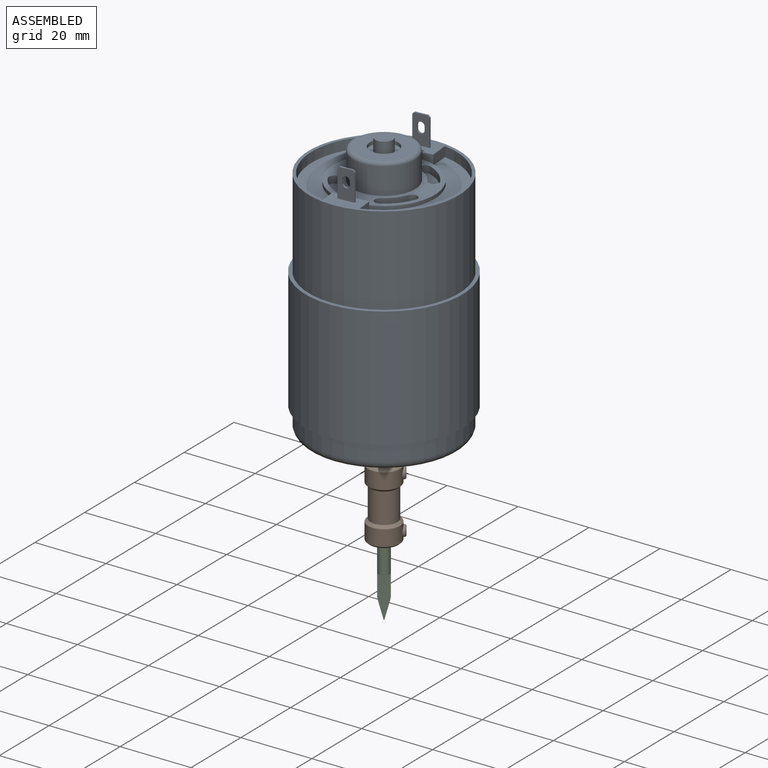
[diagram: assembled view]
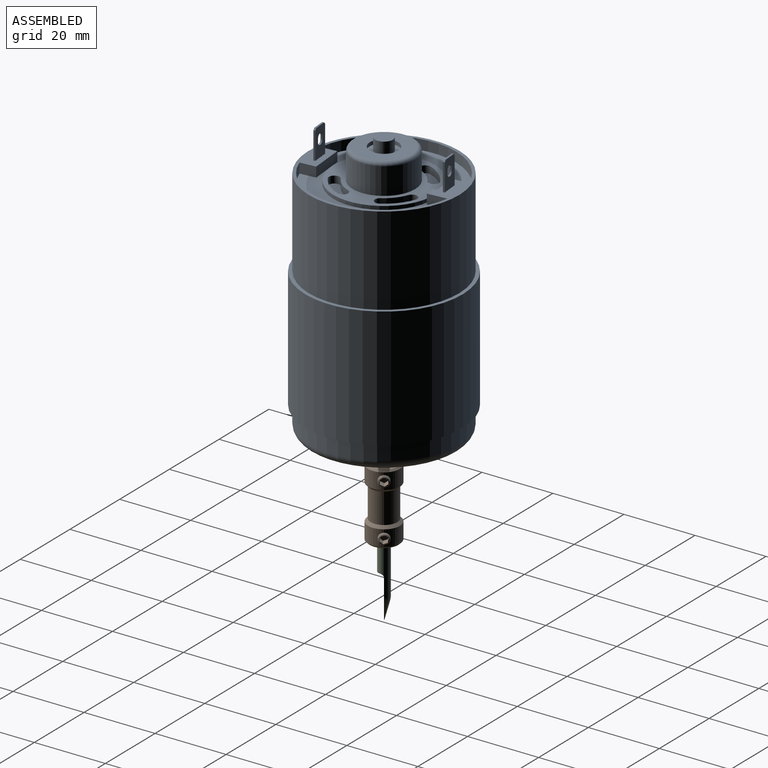
[diagram: assembled view, second angle]
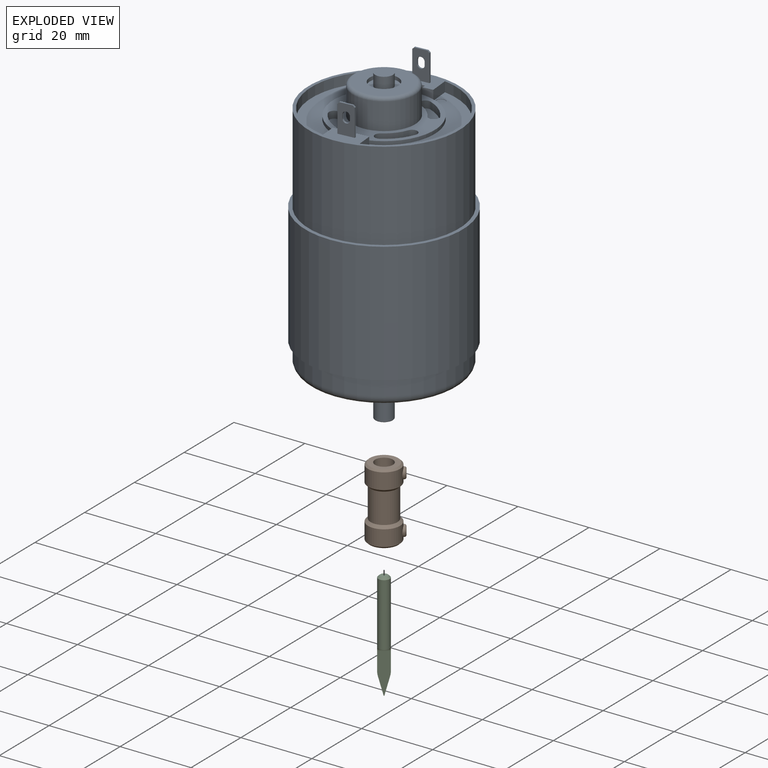
[diagram: exploded view]
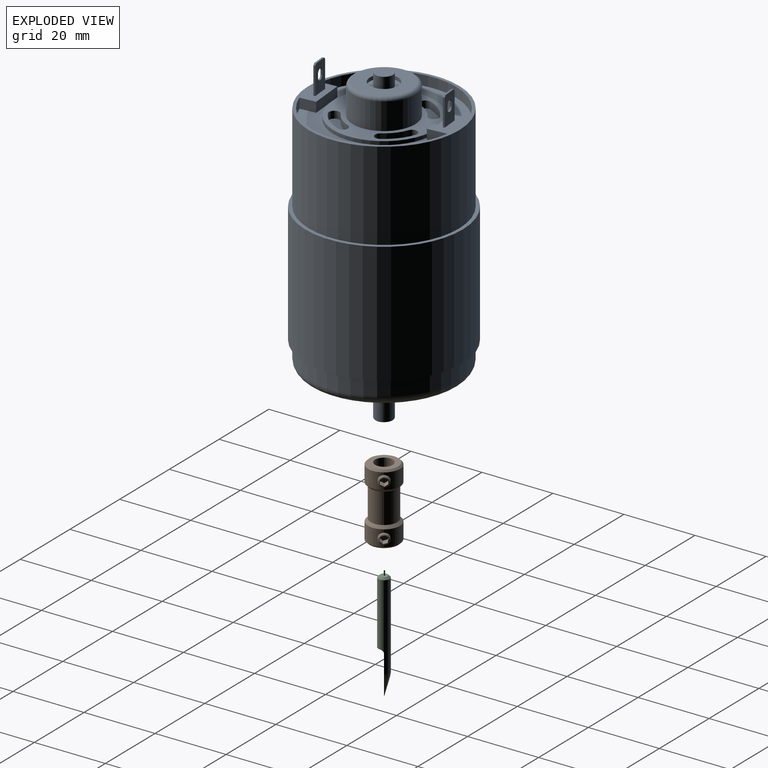
[diagram: exploded view, second angle]
ASSEMBLY  parts=3 mates=2
PART A: 110 faces, bbox 45.6x88x45.6 mm
  f0: torus R=18.65mm, axis (0,1,0), area 249.7mm2, adj f6,f28,f41
  f1: torus R=8.15mm, axis (0,1,0), area 31.9mm2, adj f8,f79,f85
  f2: torus R=7.75mm, axis (0,-1,0), area 41.4mm2, adj f19,f102,f104
  f3: torus R=2.25mm, axis (0,1,0), area 3mm2, adj f23,f107,f109
  f4: cylinder r=22.15mm len=44.3mm, axis (0,1,0), area 4731.9mm2, adj f25,f26
  f5: cylinder r=21.15mm len=42.3mm, axis (0,-1,0), area 3322.2mm2, adj f25,f27
  f6: cylinder r=21.15mm len=42.3mm, axis (0,-1,0), area 611.3mm2, adj f0,f26,f28
  f7: cylinder r=20.3mm len=39.26mm, axis (0,1,0), area 151mm2, adj f27,f31,f38,f51
  f8: cylinder r=8.9mm len=17.8mm, axis (0,-1,0), area 237.7mm2, adj f1,f41,f79
  f9: cylinder r=1.65mm len=11.5mm, axis (0,-1,0), area 119.2mm2, adj f13,f41
  f10: cylinder r=1.65mm len=11.5mm, axis (0,-1,0), area 119.2mm2, adj f14,f41
  f11: cylinder r=14.25mm len=28.5mm, axis (0,1,0), area 89.5mm2, adj f51,f83
  f12: cylinder r=1.25mm len=2.5mm, axis (0,1,0), area 0.8mm2, adj f51,f84
  f13: cone r=1.65mm half-angle=59deg, axis (0,-1,0), area 10mm2, adj f9
  f14: cone r=1.65mm half-angle=59deg, axis (0,-1,0), area 10mm2, adj f10
  f15: cylinder r=1.5mm len=2.9mm, axis (0,1,0), area 9.4mm2, adj f83,f86,f87,f98
  f16: cylinder r=1.5mm len=2.9mm, axis (0,1,0), area 9.4mm2, adj f83,f89,f90,f99
  f17: cylinder r=1.5mm len=2.79mm, axis (0,1,0), area 9.4mm2, adj f83,f92,f94,f100
  f18: cylinder r=1.5mm len=2.79mm, axis (0,1,0), area 9.4mm2, adj f83,f95,f97,f101
  f19: cylinder r=8.75mm len=17.5mm, axis (0,-1,0), area 412.3mm2, adj f2,f83,f102
  f20: cylinder r=6.62mm len=13.25mm, axis (0,-1,0), area 41.6mm2, adj f85,f103
  f21: cylinder r=3.75mm len=7.5mm, axis (0,-1,0), area 23.6mm2, adj f103,f105
  f22: cylinder r=4mm len=8mm, axis (0,1,0), area 25.1mm2, adj f104,f106
  f23: cylinder r=2.5mm len=7.55mm, axis (0,-1,0), area 118.6mm2, adj f3,f105,f107
  f24: cylinder r=2.5mm len=5mm, axis (0,-1,0), area 53.4mm2, adj f106,f108
  f25: plane 44.3x44.3mm, normal (0,1,0), area 136mm2, adj f4,f5
  f26: plane 44.3x44.3mm, normal (0,-1,0), area 136mm2, adj f4,f6
  f27: plane 42.3x42.3mm, normal (0,1,0), area 203.5mm2, adj f5,f7,f29,f30,f31,f32,f33,f34
  f28: torus R=18.65mm, axis (0,1,0), area 249.7mm2, adj f0,f6,f41
  f29: plane 8.15x4.58mm, normal (0.09,0,1), area 32.1mm2, adj f27,f42,f43,f44,f45,f46,f47,f48
  f30: plane 8.15x4.58mm, normal (-0.09,0,-1), area 32.1mm2, adj f27,f42,f43,f44,f45,f46,f47,f48
  f31: plane 4.44x2.8mm, normal (1,0,-0.09), area 12.5mm2, adj f7,f27,f32,f51
  f32: plane 9.71x2.8mm, normal (-0.09,0,-1), area 27.3mm2, adj f27,f31,f33,f51
  f33: plane 4.44x2.8mm, normal (-1,0,0.09), area 12.5mm2, adj f27,f32,f34,f51
  f34: cylinder r=20.3mm len=39.26mm, axis (0,1,0), area 151mm2, adj f27,f33,f35,f51
  f35: plane 4.44x2.8mm, normal (-1,0,0.09), area 12.5mm2, adj f27,f34,f36,f51
  f36: plane 6.92x2.8mm, normal (0.09,0,1), area 19.4mm2, adj f27,f35,f51,f52
  f37: plane 2.8x2.8mm, normal (0.09,0,1), area 7.9mm2, adj f27,f38,f51,f52
  f38: plane 5.44x2.8mm, normal (1,0,-0.09), area 15.3mm2, adj f7,f27,f37,f51
  f39: plane 8.15x4.58mm, normal (-0.09,0,-1), area 32.1mm2, adj f27,f53,f54,f55,f56,f57,f58,f59
  f40: plane 8.15x4.58mm, normal (0.09,0,1), area 32.1mm2, adj f27,f53,f54,f55,f56,f57,f58,f59
  f41: plane 37.3x37.3mm, normal (0,-1,0), area 647.6mm2, adj f0,f8,f9,f10,f28,f62,f63,f64
  f42: plane 3.63x0.81mm, normal (0,1,0), area 1.8mm2, adj f29,f30,f43,f46
  f43: plane 0.54x0.54mm, normal (-0.7,0.71,0.06), area 0.4mm2, adj f29,f30,f42,f44
  f44: plane 7.65x0.5mm, normal (-1,0,0.09), area 3.8mm2, adj f27,f29,f30,f43
  f45: plane 7.65x0.5mm, normal (1,0,-0.09), area 3.8mm2, adj f27,f29,f30,f46
  f46: plane 0.54x0.54mm, normal (0.7,0.71,-0.06), area 0.4mm2, adj f29,f30,f42,f45
  f47: plane 1x0.5mm, normal (1,0,-0.09), area 0.5mm2, adj f29,f30,f48,f50
  f48: cylinder r=1mm len=2.04mm, axis (0.09,0,1), area 1.6mm2, adj f29,f30,f47,f49
  f49: plane 1x0.5mm, normal (-1,0,0.09), area 0.5mm2, adj f29,f30,f48,f50
  f50: cylinder r=1mm len=2.04mm, axis (0.09,0,1), area 1.6mm2, adj f29,f30,f47,f49
  f51: plane 40.6x40.11mm, normal (0,1,0), area 554.3mm2, adj f7,f11,f12,f31,f32,f33,f34,f35
  f52: plane 2.8x1mm, normal (-1,0,0.09), area 2.8mm2, adj f27,f36,f37,f51
  f53: plane 7.65x0.5mm, normal (-1,0,0.09), area 3.8mm2, adj f27,f39,f40,f54
  f54: plane 0.54x0.54mm, normal (-0.7,0.71,0.06), area 0.4mm2, adj f39,f40,f53,f55
  f55: plane 3.63x0.81mm, normal (0,1,0), area 1.8mm2, adj f39,f40,f54,f56
  f56: plane 0.54x0.54mm, normal (0.7,0.71,-0.06), area 0.4mm2, adj f39,f40,f55,f57
  f57: plane 7.65x0.5mm, normal (1,0,-0.09), area 3.8mm2, adj f27,f39,f40,f56
  f58: plane 1x0.5mm, normal (-1,0,0.09), area 0.5mm2, adj f39,f40,f59,f61
  f59: cylinder r=1mm len=2.04mm, axis (-0.09,0,-1), area 1.6mm2, adj f39,f40,f58,f60
  f60: plane 1x0.5mm, normal (1,0,-0.09), area 0.5mm2, adj f39,f40,f59,f61
  f61: cylinder r=1mm len=2.04mm, axis (-0.09,0,-1), area 1.6mm2, adj f39,f40,f58,f60
  f62: plane 10x4.42mm, normal (-0.94,0,-0.34), area 47mm2, adj f41,f63,f65,f78
  f63: cylinder r=11.3mm len=10mm, axis (0,-1,0), area 78.9mm2, adj f41,f62,f64,f78
  f64: plane 10x4.07mm, normal (0.5,0,0.87), area 47mm2, adj f41,f63,f65,f78
  f65: cylinder r=16mm len=10mm, axis (0,-1,0), area 111.7mm2, adj f41,f62,f64,f78
  f66: cylinder r=16mm len=10mm, axis (0,-1,0), area 111.7mm2, adj f41,f67,f69,f80
  f67: plane 10x4.42mm, normal (0.94,0,0.34), area 47mm2, adj f41,f66,f68,f80
  f68: cylinder r=11.3mm len=10mm, axis (0,-1,0), area 78.9mm2, adj f41,f67,f69,f80
  f69: plane 10x4.07mm, normal (-0.5,0,-0.87), area 47mm2, adj f41,f66,f68,f80
  f70: plane 10x4.42mm, normal (-0.34,0,0.94), area 47mm2, adj f41,f71,f73,f81
  f71: cylinder r=11.3mm len=10mm, axis (0,-1,0), area 78.9mm2, adj f41,f70,f72,f81
  f72: plane 10x4.07mm, normal (0.87,0,-0.5), area 47mm2, adj f41,f71,f73,f81
  f73: cylinder r=16mm len=10mm, axis (0,-1,0), area 111.7mm2, adj f41,f70,f72,f81
  f74: cylinder r=16mm len=10mm, axis (0,-1,0), area 111.7mm2, adj f41,f75,f77,f82
  f75: plane 10x4.42mm, normal (0.34,0,-0.94), area 47mm2, adj f41,f74,f76,f82
  f76: cylinder r=11.3mm len=10mm, axis (0,-1,0), area 78.9mm2, adj f41,f75,f77,f82
  f77: plane 10x4.07mm, normal (-0.87,0,0.5), area 47mm2, adj f41,f74,f76,f82
  f78: plane 9.99x9.39mm, normal (0,-1,0), area 44.8mm2, adj f62,f63,f64,f65
  f79: torus R=8.15mm, axis (0,1,0), area 31.9mm2, adj f1,f8,f85
  f80: plane 9.99x9.39mm, normal (0,-1,0), area 44.8mm2, adj f66,f67,f68,f69
  f81: plane 9.99x9.39mm, normal (0,-1,0), area 44.8mm2, adj f70,f71,f72,f73
  f82: plane 9.99x9.39mm, normal (0,-1,0), area 44.8mm2, adj f74,f75,f76,f77
  f83: plane 28.5x28.5mm, normal (0,1,0), area 276.5mm2, adj f11,f15,f16,f17,f18,f19,f86,f87
  f84: plane 2.5x2.5mm, normal (0,1,0), area 4.9mm2, adj f12
  f85: plane 16.3x16.3mm, normal (0,-1,0), area 70.8mm2, adj f1,f20,f79
  f86: cylinder r=13mm len=6.56mm, axis (0,1,0), area 17.5mm2, adj f15,f83,f88,f98
  f87: cylinder r=10mm len=5.05mm, axis (0,1,0), area 13.4mm2, adj f15,f83,f88,f98
  f88: cylinder r=1.5mm len=2.79mm, axis (0,1,0), area 9.4mm2, adj f83,f86,f87,f98
  f89: cylinder r=13mm len=6.56mm, axis (0,1,0), area 17.5mm2, adj f16,f83,f91,f99
  f90: cylinder r=10mm len=5.05mm, axis (0,1,0), area 13.4mm2, adj f16,f83,f91,f99
  f91: cylinder r=1.5mm len=2.79mm, axis (0,1,0), area 9.4mm2, adj f83,f89,f90,f99
  f92: cylinder r=13mm len=6.56mm, axis (0,1,0), area 17.5mm2, adj f17,f83,f93,f100
  f93: cylinder r=1.5mm len=2.9mm, axis (0,1,0), area 9.4mm2, adj f83,f92,f94,f100
  f94: cylinder r=10mm len=5.05mm, axis (0,1,0), area 13.4mm2, adj f17,f83,f93,f100
  f95: cylinder r=13mm len=6.56mm, axis (0,1,0), area 17.5mm2, adj f18,f83,f96,f101
  f96: cylinder r=1.5mm len=2.9mm, axis (0,1,0), area 9.4mm2, adj f83,f95,f97,f101
  f97: cylinder r=10mm len=5.05mm, axis (0,1,0), area 13.4mm2, adj f18,f83,f96,f101
  f98: plane 8.8x7.87mm, normal (0,1,0), area 30.2mm2, adj f15,f86,f87,f88
  f99: plane 8.8x7.87mm, normal (0,1,0), area 30.2mm2, adj f16,f89,f90,f91
  f100: plane 8.8x7.87mm, normal (0,1,0), area 30.2mm2, adj f17,f92,f93,f94
  f101: plane 8.8x7.87mm, normal (0,1,0), area 30.2mm2, adj f18,f95,f96,f97
  f102: torus R=7.75mm, axis (0,-1,0), area 41.4mm2, adj f2,f19,f104
  f103: plane 13.25x13.25mm, normal (0,-1,0), area 93.7mm2, adj f20,f21
  f104: plane 15.5x15.5mm, normal (0,1,0), area 138.4mm2, adj f2,f22,f102
  f105: plane 7.5x7.5mm, normal (0,-1,0), area 24.5mm2, adj f21,f23
  f106: plane 8x8mm, normal (0,1,0), area 30.6mm2, adj f22,f24
  f107: torus R=2.25mm, axis (0,1,0), area 3mm2, adj f3,f23,f109
  f108: plane 5x5mm, normal (0,1,0), area 19.6mm2, adj f24
  f109: plane 4.5x4.5mm, normal (0,-1,0), area 15.9mm2, adj f3,f107
PART B: 40 faces, bbox 9.8x9.1x20.1 mm
  f0: plane 0.24x0.12mm, normal (1,0,0), area 0mm2, adj f32,f39
  f1: plane 0.22x0.15mm, normal (1,0,0), area 0mm2, adj f33,f39
  f2: plane 0.17x0.01mm, normal (1,0,0), area 0mm2, adj f34,f39
  f3: plane 0.13x0.12mm, normal (1,0,0), area 0mm2, adj f25,f38
  f4: plane 0.17x0.05mm, normal (1,0,0), area 0mm2, adj f26,f38
  f5: plane 0.18x0.04mm, normal (1,0,0), area 0mm2, adj f27,f38
  f6: plane 0.13x0.12mm, normal (1,0,0), area 0mm2, adj f28,f38
  f7: plane 0.17x0.05mm, normal (1,0,0), area 0mm2, adj f29,f38
  f8: plane 0.19x0.01mm, normal (1,0,0), area 0mm2, adj f31,f39
  f9: plane 0.18x0.04mm, normal (1,0,0), area 0mm2, adj f24,f38
  f10: cylinder r=4.5mm len=9mm, axis (0,0,-1), area 120.1mm2, adj f18,f20,f23
  f11: cylinder r=4.5mm len=9mm, axis (0,0,-1), area 120.1mm2, adj f19,f21,f22
  f12: plane 8x8mm, normal (0,0,1), area 30.6mm2, adj f14,f21
  f13: plane 8x8mm, normal (0,0,-1), area 42.3mm2, adj f16,f20
  f14: cylinder r=2.5mm len=10mm, axis (0,0,1), area 157.1mm2, adj f12,f15
  f15: plane 5x5mm, normal (0,0,1), area 11.7mm2, adj f14,f16
  f16: cylinder r=1.59mm len=10mm, axis (0,0,-1), area 99.7mm2, adj f13,f15
  f17: cylinder r=3.75mm len=8.5mm, axis (0,0,-1), area 200.3mm2, adj f18,f19
  f18: cone r=4.5mm half-angle=45deg, axis (0,0,-1), area 27.5mm2, adj f10,f17
  f19: cone r=3.5mm half-angle=45deg, axis (0,0,1), area 27.5mm2, adj f11,f17
  f20: cone r=4.5mm half-angle=45deg, axis (0,0,1), area 18.9mm2, adj f10,f13
  f21: cone r=4mm half-angle=45deg, axis (0,0,-1), area 18.9mm2, adj f11,f12
  f22: cylinder r=1.5mm len=3mm, axis (-1,0,0), area 3.1mm2, adj f11,f39
  f23: cylinder r=1.5mm len=3mm, axis (-1,0,0), area 3.1mm2, adj f10,f38
  f24: plane 2.06x1.18mm, normal (0,0.98,-0.22), area 2.3mm2, adj f9,f25,f29,f30,f38
  f25: plane 2.06x0.91mm, normal (0,0.68,0.73), area 2.3mm2, adj f3,f24,f26,f30,f38
  f26: plane 2.06x1.16mm, normal (0,-0.3,0.96), area 2.3mm2, adj f4,f25,f27,f30,f38
  f27: plane 2.06x1.18mm, normal (0,-0.98,0.22), area 2.3mm2, adj f5,f26,f28,f30,f38
  f28: plane 2.06x0.91mm, normal (0,-0.68,-0.73), area 2.3mm2, adj f6,f27,f29,f30,f38
  f29: plane 2.06x1.16mm, normal (0,0.3,-0.96), area 2.3mm2, adj f7,f24,f28,f30,f38
  f30: plane 2.24x2.2mm, normal (1,0,0), area 3.4mm2, adj f24,f25,f26,f27,f28,f29
  f31: plane 2.06x1.21mm, normal (0,1,0.07), area 2.3mm2, adj f8,f32,f36,f37,f39
  f32: plane 2.05x1.09mm, normal (0,0.44,0.9), area 2.3mm2, adj f0,f31,f33,f37,f39
  f33: plane 2.05x1mm, normal (0,-0.56,0.83), area 2.3mm2, adj f1,f32,f34,f37,f39
  f34: plane 2.06x1.21mm, normal (0,-1,-0.07), area 2.3mm2, adj f2,f33,f35,f37,f39
  f35: plane 2x1.03mm, normal (0,-0.44,-0.9), area 2.3mm2, adj f34,f36,f37,f39
  f36: plane 2x0.95mm, normal (0,0.56,-0.83), area 2.3mm2, adj f31,f35,f37,f39
  f37: plane 2.29x2.07mm, normal (1,0,0), area 3.4mm2, adj f31,f32,f33,f34,f35,f36
  f38: torus R=1mm, axis (1,0,0), area 6.1mm2, adj f3,f4,f5,f6,f7,f9,f23,f24
  f39: torus R=1mm, axis (1,0,0), area 6.1mm2, adj f0,f1,f2,f8,f22,f31,f32,f33
PART C: 9 faces, bbox 3.2x3.2x30.6 mm
  f0: cylinder r=1.59mm len=23.84mm, axis (0,0,-1), area 207.9mm2, adj f3,f5,f6,f7,f8
  f1: cone r=1.59mm half-angle=15deg, axis (0,0,1), area 12.1mm2, adj f2,f3,f7
  f2: sphere r=0.1mm, area 0mm2, adj f1,f7
  f3: revolved ~3.18x1.59mm, area 6.3mm2, adj f0,f1,f7
  f4: plane 2.18x2.18mm, normal (0,0,1), area 3.7mm2, adj f8
  f5: cylinder r=1mm len=3.18mm, axis (1,0,0), area 4.7mm2, adj f0,f6,f7
  f6: plane 2.47x0.59mm, normal (0,0,-1), area 1mm2, adj f0,f5
  f7: plane 11.38x3.18mm, normal (0,-1,0), area 27.6mm2, adj f0,f1,f2,f3,f5
  f8: cone r=1.09mm half-angle=45deg, axis (0,0,-1), area 5.9mm2, adj f0,f4
PLACE A rot(axis=(1,0,0),90deg) t=(0,-67.07,-55.1)mm fixed
PLACE B rot(axis=(0,0,1),35.2deg) t=(-3.5,-5.98,-119.83)mm
PLACE C rot(axis=(0,0,1),35.2deg) t=(-3.5,-5.98,-134.33)mm
MATE revolute B.f10 <-> A.f102  axis (0,0,1) through (-3.5,-5.98,-104.83)mm
MATE fastened C.f0 <-> B.f10  axis (0,0,-1) through (-3.5,-5.98,-109.83)mm
